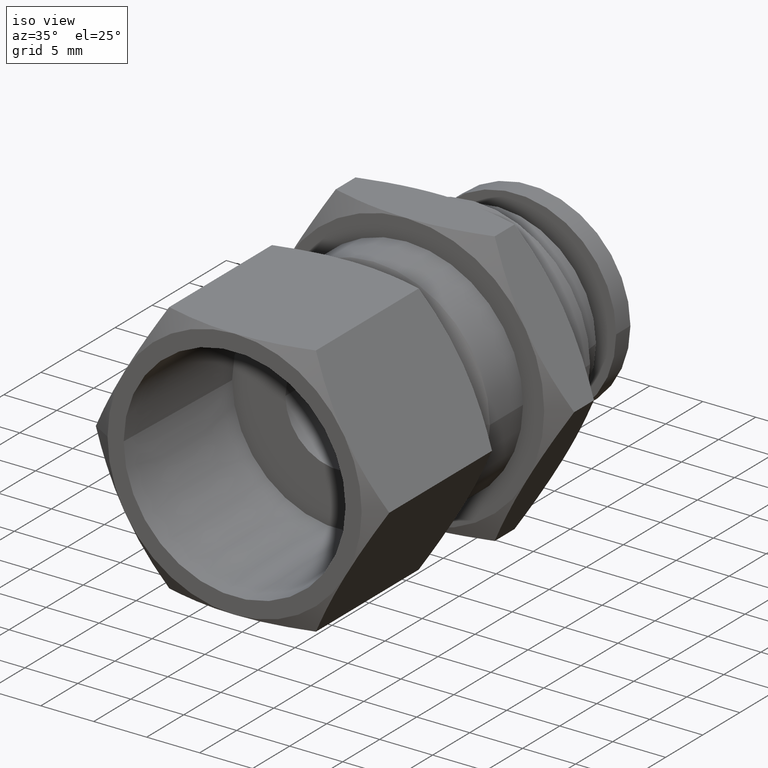
[diagram: clean part render]
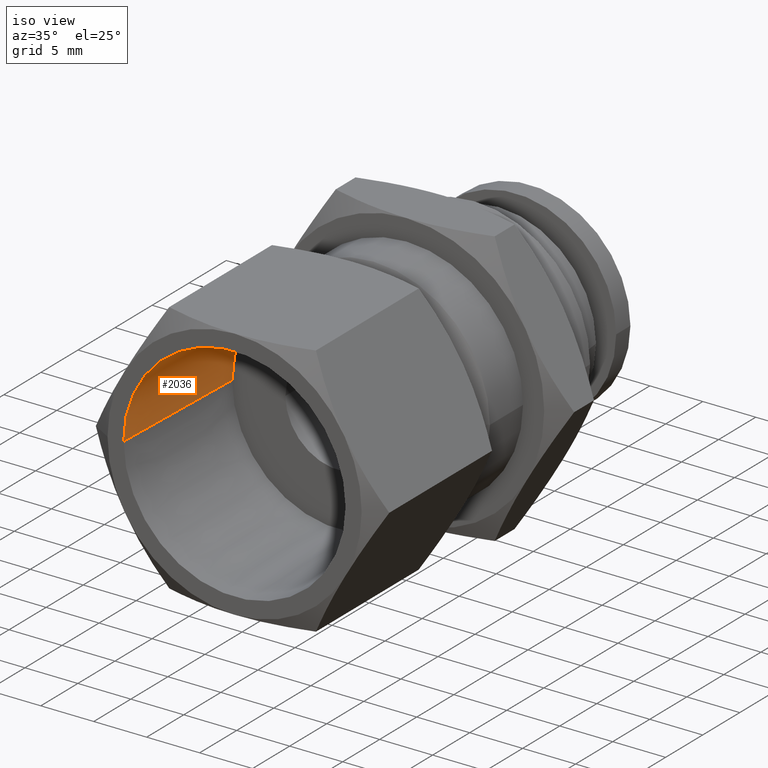
[diagram: same view with one face highlighted and labeled with its STEP entity id]
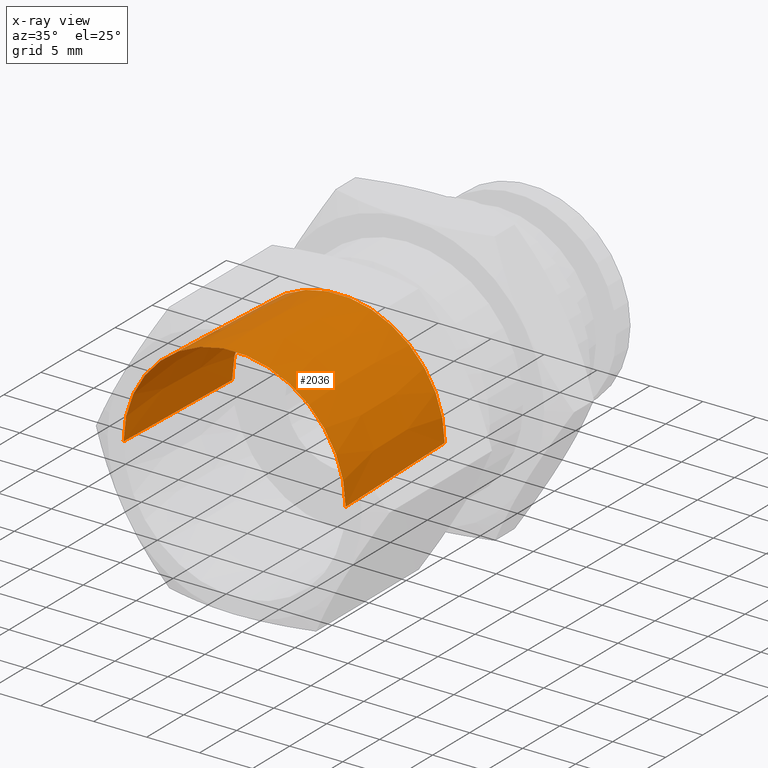
[diagram: x-ray of the same camera — body ghosted, the highlighted face saturated]
A machine part, iso view. The second image highlights one B-rep face of the part: STEP entity #2036.
The next image is the same camera in x-ray: the body ghosted, the highlighted face saturated — about 1% of this face is hidden behind the body in this view.
In plain terms, the highlighted conical surface has half-angle 1.79 deg.
Its self-contained STEP definition (entity closure, byte-faithful):
#53 = FACE_OUTER_BOUND ( 'NONE', #3123, .T. ) ;
#68 = VERTEX_POINT ( 'NONE', #875 ) ;
#112 = LINE ( 'NONE', #860, #823 ) ;
#123 = EDGE_CURVE ( 'NONE', #1541, #1065, #112, .T. ) ;
#355 = AXIS2_PLACEMENT_3D ( 'NONE', #903, #558, #715 ) ;
#374 = CONICAL_SURFACE ( 'NONE', #1050, 0.4124999999901617900, 0.03124139357500086900 ) ;
#558 = DIRECTION ( 'NONE',  ( -2.955362829580007300E-013, -1.000000000000000000, 0.0000000000000000000 ) ) ;
#715 = DIRECTION ( 'NONE',  ( 1.000000000000000000, -2.955429250291762800E-013, 0.0000000000000000000 ) ) ;
#751 = DIRECTION ( 'NONE',  ( -2.955362829580007300E-013, -1.000000000000000000, 0.0000000000000000000 ) ) ;
#768 = DIRECTION ( 'NONE',  ( -0.03123631176147925400, -0.9995120273551186800, 3.825344921550263900E-018 ) ) ;
#809 = AXIS2_PLACEMENT_3D ( 'NONE', #3063, #1407, #3338 ) ;
#823 = VECTOR ( 'NONE', #768, 39.37007874015748900 ) ;
#860 = CARTESIAN_POINT ( 'NONE',  ( -0.4124999999903479200, -0.6299212598426174900, 5.051668046362348800E-017 ) ) ;
#875 = CARTESIAN_POINT ( 'NONE',  ( 0.3952747297791970900, -0.07874015748003955500, 0.0000000000000000000 ) ) ;
#903 = CARTESIAN_POINT ( 'NONE',  ( -2.331557463914014500E-014, -0.07874015747992274500, 0.0000000000000000000 ) ) ;
#948 = CIRCLE ( 'NONE', #355, 0.3952747297792204000 ) ;
#956 = EDGE_CURVE ( 'NONE', #68, #1541, #948, .T. ) ;
#1050 = AXIS2_PLACEMENT_3D ( 'NONE', #2454, #751, #2209 ) ;
#1065 = VERTEX_POINT ( 'NONE', #1596 ) ;
#1176 = CARTESIAN_POINT ( 'NONE',  ( 0.4124999999899756100, -0.6299212598428606300, 0.0000000000000000000 ) ) ;
#1186 = LINE ( 'NONE', #1575, #2033 ) ;
#1407 = DIRECTION ( 'NONE',  ( 2.955362829580007300E-013, 1.000000000000000000, -0.0000000000000000000 ) ) ;
#1533 = ORIENTED_EDGE ( 'NONE', *, *, #956, .F. ) ;
#1541 = VERTEX_POINT ( 'NONE', #3309 ) ;
#1575 = CARTESIAN_POINT ( 'NONE',  ( 0.4124999999899756100, -0.6299212598428615100, 0.0000000000000000000 ) ) ;
#1596 = CARTESIAN_POINT ( 'NONE',  ( -0.4124999999903479200, -0.6299212598426169300, 5.051668046362348800E-017 ) ) ;
#1609 = EDGE_CURVE ( 'NONE', #68, #2560, #1186, .T. ) ;
#1826 = ORIENTED_EDGE ( 'NONE', *, *, #2905, .F. ) ;
#1846 = DIRECTION ( 'NONE',  ( 0.03123631176088847600, -0.9995120273551372200, 0.0000000000000000000 ) ) ;
#1897 = ORIENTED_EDGE ( 'NONE', *, *, #1609, .T. ) ;
#2033 = VECTOR ( 'NONE', #1846, 39.37007874015748100 ) ;
#2036 = ADVANCED_FACE ( 'NONE', ( #53 ), #374, .F. ) ;
#2209 = DIRECTION ( 'NONE',  ( 1.000000000000000000, -2.957018495030752400E-013, 0.0000000000000000000 ) ) ;
#2454 = CARTESIAN_POINT ( 'NONE',  ( -1.862095888681403100E-013, -0.6299212598427395000, 0.0000000000000000000 ) ) ;
#2560 = VERTEX_POINT ( 'NONE', #1176 ) ;
#2708 = ORIENTED_EDGE ( 'NONE', *, *, #123, .F. ) ;
#2905 = EDGE_CURVE ( 'NONE', #1065, #2560, #2911, .T. ) ;
#2911 = CIRCLE ( 'NONE', #809, 0.4124999999901617900 ) ;
#3063 = CARTESIAN_POINT ( 'NONE',  ( -1.862095888681400800E-013, -0.6299212598427388300, 0.0000000000000000000 ) ) ;
#3123 = EDGE_LOOP ( 'NONE', ( #2708, #1533, #1897, #1826 ) ) ;
#3309 = CARTESIAN_POINT ( 'NONE',  ( -0.3952747297792436600, -0.07874015747980592200, 4.946193686220960300E-017 ) ) ;
#3338 = DIRECTION ( 'NONE',  ( 1.000000000000000000, -2.953707164129262300E-013, 0.0000000000000000000 ) ) ;